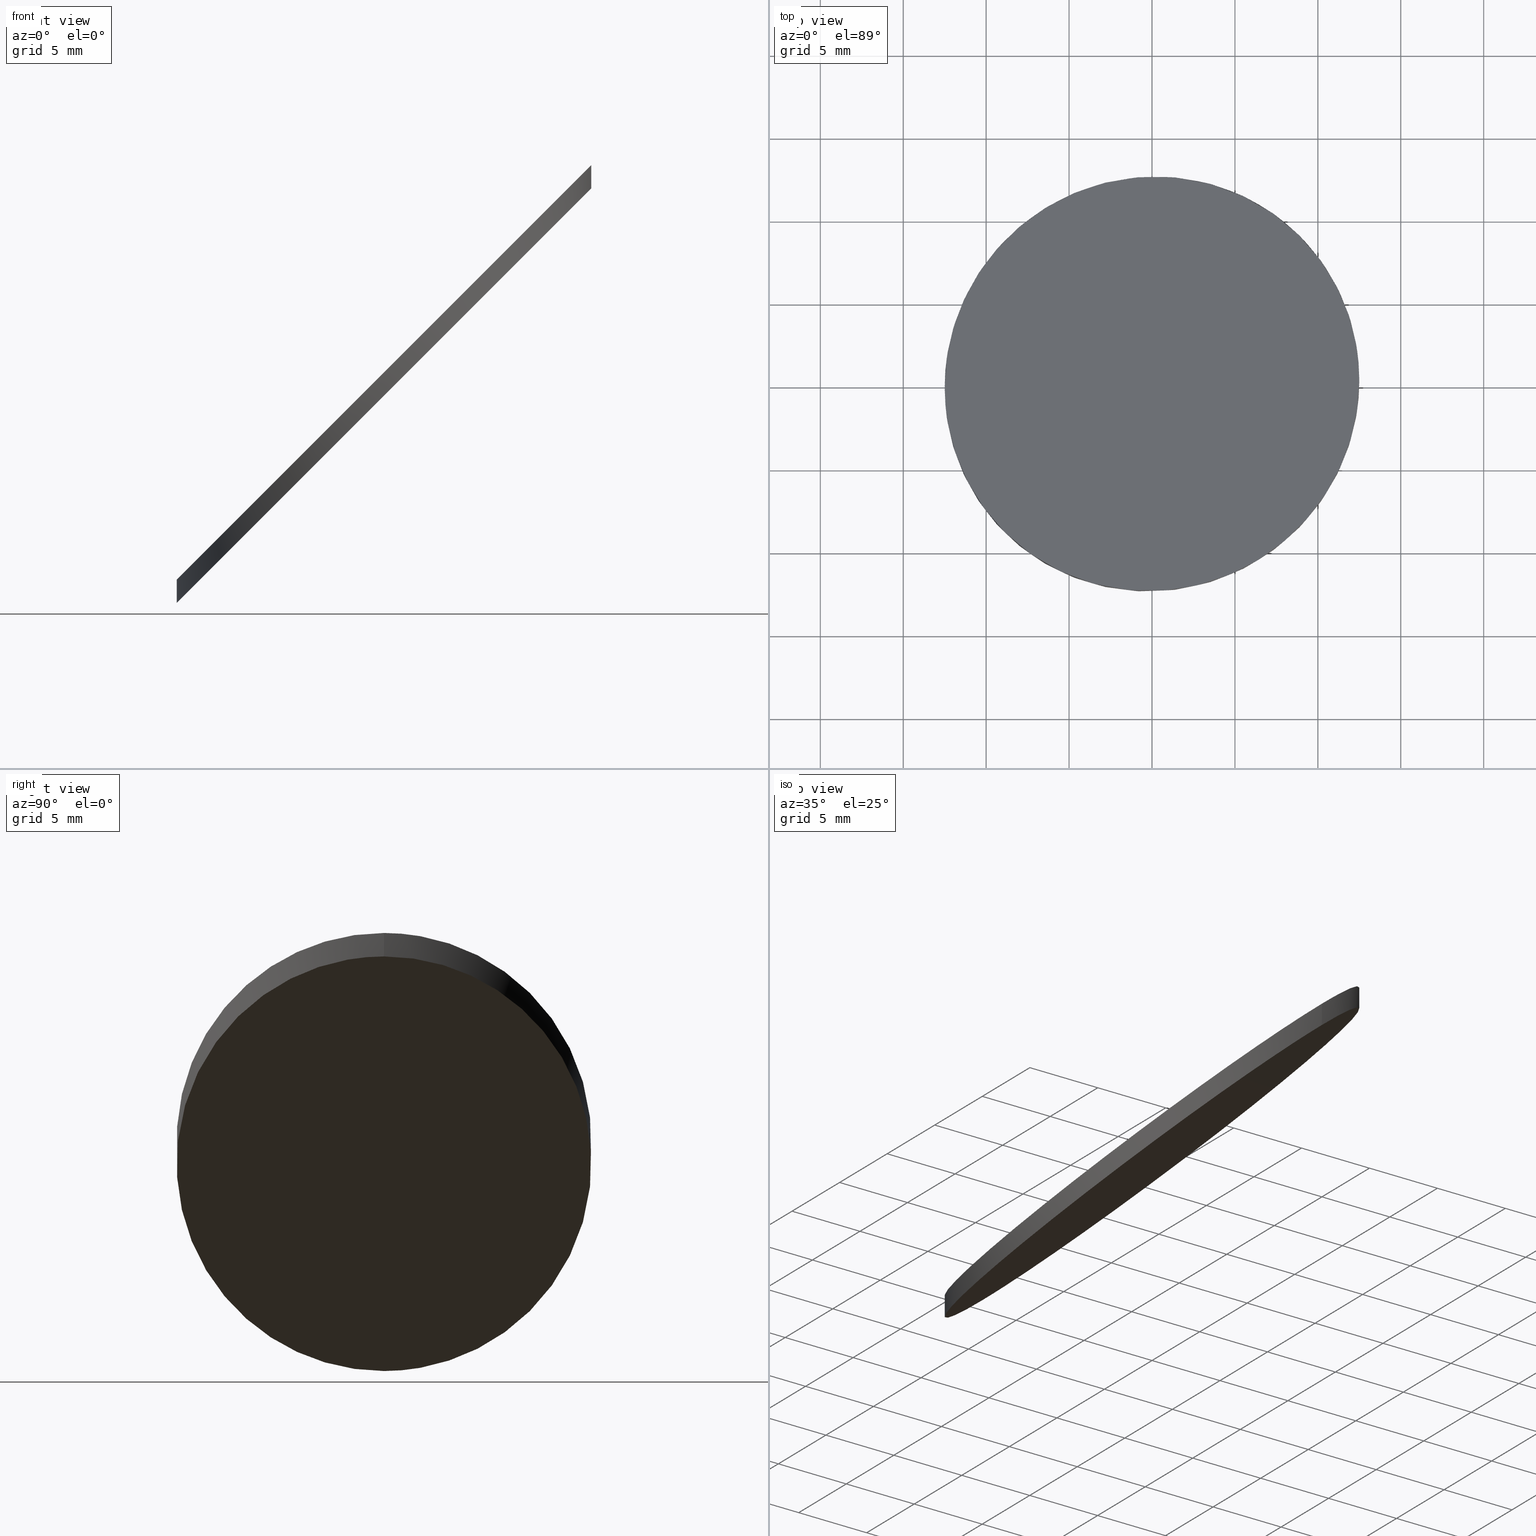
[diagram: canonical four-view strip — front | top / right | iso, engineering-drawing reading convention]
A machine part, canonical four-view strip (front | top / right | iso — engineering-drawing reading convention). The complete STEP part file that produces these views, byte-faithful:
ISO-10303-21;
HEADER;
FILE_DESCRIPTION (( 'STEP AP203' ),
    '1' );
FILE_NAME ('347501.STEP',
    '2021-02-07T03:24:04',
    ( '' ),
    ( '' ),
    'SwSTEP 2.0',
    'SolidWorks 2019',
    '' );
FILE_SCHEMA (( 'CONFIG_CONTROL_DESIGN' ));
ENDSEC;

DATA;
#1 = CARTESIAN_POINT ( 'NONE',  ( -12.50000000000000000, 0.000000000000000000, 6.948063035056913250 ) ) ;
#2 = CALENDAR_DATE ( 2021, 7, 2 ) ;
#3 = DATE_AND_TIME ( #169, #29 ) ;
#4 = CARTESIAN_POINT ( 'NONE',  ( -12.50000000000000000, 0.000000000000000000, 5.533849472683822768 ) ) ;
#5 = EDGE_LOOP ( 'NONE', ( #91, #171, #103, #152 ) ) ;
#6 = EDGE_CURVE ( 'NONE', #76, #170, #34, .T. ) ;
#7 = CARTESIAN_POINT ( 'NONE',  ( 12.50000000000000000, 1.530808498934191127E-15, 61.00000000000001421 ) ) ;
#8 = APPROVAL_PERSON_ORGANIZATION ( #163, #64, #97 ) ;
#9 = DIRECTION ( 'NONE',  ( 1.000000000000000000, 0.000000000000000000, 0.000000000000000000 ) ) ;
#10 = CARTESIAN_POINT ( 'NONE',  ( 0.000000000000000000, 0.000000000000000000, 61.00000000000001421 ) ) ;
#11 = APPLICATION_PROTOCOL_DEFINITION ( 'international standard', 'config_control_design', 1994, #144 ) ;
#12 = AXIS2_PLACEMENT_3D ( 'NONE', #10, #120, #93 ) ;
#13 =( NAMED_UNIT ( * ) PLANE_ANGLE_UNIT ( ) SI_UNIT ( $, .RADIAN. ) );
#14 = PERSON_AND_ORGANIZATION ( #55, #99 ) ;
#15 = EDGE_CURVE ( 'NONE', #170, #76, #155, .T. ) ;
#16 = PERSON_AND_ORGANIZATION_ROLE ( 'creator' ) ;
#17 = CC_DESIGN_DATE_AND_TIME_ASSIGNMENT ( #153, #88, ( #167 ) ) ;
#18 = APPROVAL_PERSON_ORGANIZATION ( #122, #40, #136 ) ;
#19 = CLOSED_SHELL ( 'NONE', ( #115, #154, #62, #156 ) ) ;
#20 = PRODUCT_DEFINITION_FORMATION_WITH_SPECIFIED_SOURCE ( '�κ�', '', #32, .NOT_KNOWN. ) ;
#21 = CARTESIAN_POINT ( 'NONE',  ( 12.50000000000000000, 1.530808498934191127E-15, 31.94806303505680489 ) ) ;
#22 = CARTESIAN_POINT ( 'NONE',  ( 12.50000000000000000, -25.00000000000000000, 30.53384947268371263 ) ) ;
#23 = DIRECTION ( 'NONE',  ( 0.7071067811865490160, 0.000000000000000000, 0.7071067811865460184 ) ) ;
#24 = CARTESIAN_POINT ( 'NONE',  ( -12.50000000000000000, 0.000000000000000000, 6.948063035056913250 ) ) ;
#25 = LINE ( 'NONE', #7, #38 ) ;
#26 = DIRECTION ( 'NONE',  ( -0.7071067811865489050, 0.000000000000000000, -0.7071067811865461294 ) ) ;
#27 = FACE_OUTER_BOUND ( 'NONE', #5, .T. ) ;
#28 = DIRECTION ( 'NONE',  ( -0.000000000000000000, -0.000000000000000000, -1.000000000000000000 ) ) ;
#29 = LOCAL_TIME ( 11, 24, 4.000000000000000000, #166 ) ;
#30 = PERSON_AND_ORGANIZATION_ROLE ( 'creator' ) ;
#31 = VERTEX_POINT ( 'NONE', #24 ) ;
#32 = PRODUCT ( '347501', '347501', '', ( #106 ) ) ;
#33 = CARTESIAN_POINT ( 'NONE',  ( -12.50000000000000533, -25.00000000000000000, 6.948063035056907921 ) ) ;
#34 =( BOUNDED_CURVE ( )  B_SPLINE_CURVE ( 3, ( #77, #104, #22, #102 ),
 .UNSPECIFIED., .F., .T. ) 
 B_SPLINE_CURVE_WITH_KNOTS ( ( 4, 4 ),
 ( 0.000000000000000000, 3.141592653589793116 ),
 .UNSPECIFIED. ) 
 CURVE ( )  GEOMETRIC_REPRESENTATION_ITEM ( )  RATIONAL_B_SPLINE_CURVE ( ( 1.000000000000000000, 0.3333333333333333703, 0.3333333333333333703, 1.000000000000000000 ) ) 
 REPRESENTATION_ITEM ( '' )  );
#35 = CARTESIAN_POINT ( 'NONE',  ( -12.50000000000000533, 25.00000000000000000, 5.533849472683815662 ) ) ;
#36 = APPLICATION_PROTOCOL_DEFINITION ( 'international standard', 'config_control_design', 1994, #175 ) ;
#37 = DIRECTION ( 'NONE',  ( -1.000000000000000000, 0.000000000000000000, 0.000000000000000000 ) ) ;
#38 = VECTOR ( 'NONE', #69, 1000.000000000000000 ) ;
#39 = UNCERTAINTY_MEASURE_WITH_UNIT (LENGTH_MEASURE( 1.000000000000000082E-05 ), #121, 'distance_accuracy_value', 'NONE');
#40 = APPROVAL ( #45, 'δָ��' ) ;
#41 = APPROVAL_STATUS ( 'not_yet_approved' ) ;
#42 = CARTESIAN_POINT ( 'NONE',  ( -12.50000000000000533, 25.00000000000000000, 6.948063035056907921 ) ) ;
#43 = LOCAL_TIME ( 11, 24, 4.000000000000000000, #65 ) ;
#44 = APPROVAL_DATE_TIME ( #139, #68 ) ;
#45 = APPROVAL_STATUS ( 'not_yet_approved' ) ;
#46 = CALENDAR_DATE ( 2021, 7, 2 ) ;
#47 = ORIENTED_EDGE ( 'NONE', *, *, #78, .T. ) ;
#48 = CARTESIAN_POINT ( 'NONE',  ( 12.50000000000000000, 1.530808498934191127E-15, 30.53384947268370908 ) ) ;
#49 = EDGE_LOOP ( 'NONE', ( #47, #72, #157, #61 ) ) ;
#50 = EDGE_CURVE ( 'NONE', #105, #31, #74, .T. ) ;
#51 = EDGE_LOOP ( 'NONE', ( #172, #111 ) ) ;
#52 =( GEOMETRIC_REPRESENTATION_CONTEXT ( 3 ) GLOBAL_UNCERTAINTY_ASSIGNED_CONTEXT ( ( #39 ) ) GLOBAL_UNIT_ASSIGNED_CONTEXT ( ( #121, #13, #133 ) ) REPRESENTATION_CONTEXT ( 'NONE', 'WORKASPACE' ) );
#53 = ORIENTED_EDGE ( 'NONE', *, *, #50, .F. ) ;
#54 = PLANE ( 'NONE',  #112 ) ;
#55 = PERSON ( 'δָ��', 'δָ��', 'δָ��', ('δָ��'), ('δָ��'), ('δָ��') ) ;
#56 = CARTESIAN_POINT ( 'NONE',  ( 12.50000000000000000, 1.530808498934191127E-15, 31.94806303505680489 ) ) ;
#57 = CC_DESIGN_PERSON_AND_ORGANIZATION_ASSIGNMENT ( #14, #16, ( #20 ) ) ;
#58 = APPROVAL_DATE_TIME ( #3, #40 ) ;
#59 = VECTOR ( 'NONE', #150, 1000.000000000000000 ) ;
#60 = COORDINATED_UNIVERSAL_TIME_OFFSET ( 8, 0, .AHEAD. ) ;
#61 = ORIENTED_EDGE ( 'NONE', *, *, #160, .F. ) ;
#62 = ADVANCED_FACE ( 'NONE', ( #128 ), #145, .F. ) ;
#63 = CARTESIAN_POINT ( 'NONE',  ( 12.50000000000000000, 1.530808498934191127E-15, 30.53384947268370908 ) ) ;
#64 = APPROVAL ( #41, 'δָ��' ) ;
#65 = COORDINATED_UNIVERSAL_TIME_OFFSET ( 8, 0, .AHEAD. ) ;
#66 = FACE_OUTER_BOUND ( 'NONE', #143, .T. ) ;
#67 = DIRECTION ( 'NONE',  ( 0.7071067811865461294, 0.000000000000000000, -0.7071067811865489050 ) ) ;
#68 = APPROVAL ( #151, 'δָ��' ) ;
#69 = DIRECTION ( 'NONE',  ( -0.000000000000000000, -0.000000000000000000, -1.000000000000000000 ) ) ;
#70 = DATE_AND_TIME ( #71, #129 ) ;
#71 = CALENDAR_DATE ( 2021, 7, 2 ) ;
#72 = ORIENTED_EDGE ( 'NONE', *, *, #92, .T. ) ;
#73 = SHAPE_DEFINITION_REPRESENTATION ( #109, #149 ) ;
#74 =( BOUNDED_CURVE ( )  B_SPLINE_CURVE ( 3, ( #21, #114, #33, #90 ),
 .UNSPECIFIED., .F., .T. ) 
 B_SPLINE_CURVE_WITH_KNOTS ( ( 4, 4 ),
 ( 3.141592653589793116, 6.283185307179586232 ),
 .UNSPECIFIED. ) 
 CURVE ( )  GEOMETRIC_REPRESENTATION_ITEM ( )  RATIONAL_B_SPLINE_CURVE ( ( 1.000000000000000000, 0.3333333333333333703, 0.3333333333333333703, 1.000000000000000000 ) ) 
 REPRESENTATION_ITEM ( '' )  );
#75 = COORDINATED_UNIVERSAL_TIME_OFFSET ( 8, 0, .AHEAD. ) ;
#76 = VERTEX_POINT ( 'NONE', #79 ) ;
#77 = CARTESIAN_POINT ( 'NONE',  ( -12.50000000000000000, 0.000000000000000000, 5.533849472683822768 ) ) ;
#78 = EDGE_CURVE ( 'NONE', #31, #105, #98, .T. ) ;
#79 = CARTESIAN_POINT ( 'NONE',  ( -12.50000000000000000, 0.000000000000000000, 5.533849472683822768 ) ) ;
#80 = CC_DESIGN_PERSON_AND_ORGANIZATION_ASSIGNMENT ( #137, #30, ( #167 ) ) ;
#81 = CARTESIAN_POINT ( 'NONE',  ( 0.000000000000000000, 0.000000000000000000, 61.00000000000001421 ) ) ;
#82 = CYLINDRICAL_SURFACE ( 'NONE', #134, 12.50000000000000000 ) ;
#83 = LINE ( 'NONE', #135, #59 ) ;
#84 = PERSON_AND_ORGANIZATION_ROLE ( 'design_supplier' ) ;
#85 = APPROVAL_DATE_TIME ( #174, #64 ) ;
#86 = PERSON_AND_ORGANIZATION_ROLE ( 'classification_officer' ) ;
#87 = DATE_TIME_ROLE ( 'classification_date' ) ;
#88 = DATE_TIME_ROLE ( 'creation_date' ) ;
#89 = CC_DESIGN_PERSON_AND_ORGANIZATION_ASSIGNMENT ( #148, #131, ( #32 ) ) ;
#90 = CARTESIAN_POINT ( 'NONE',  ( -12.50000000000000000, 0.000000000000000000, 6.948063035056913250 ) ) ;
#91 = ORIENTED_EDGE ( 'NONE', *, *, #92, .F. ) ;
#92 = EDGE_CURVE ( 'NONE', #105, #170, #25, .T. ) ;
#93 = DIRECTION ( 'NONE',  ( -1.000000000000000000, 0.000000000000000000, 0.000000000000000000 ) ) ;
#94 = CARTESIAN_POINT ( 'NONE',  ( 12.50000000000000000, 1.530808498934191127E-15, 31.94806303505680489 ) ) ;
#95 = DIRECTION ( 'NONE',  ( 0.000000000000000000, 0.000000000000000000, 1.000000000000000000 ) ) ;
#96 = CC_DESIGN_PERSON_AND_ORGANIZATION_ASSIGNMENT ( #168, #84, ( #20 ) ) ;
#97 = APPROVAL_ROLE ( '' ) ;
#98 =( BOUNDED_CURVE ( )  B_SPLINE_CURVE ( 3, ( #1, #42, #146, #94 ),
 .UNSPECIFIED., .F., .T. ) 
 B_SPLINE_CURVE_WITH_KNOTS ( ( 4, 4 ),
 ( 0.000000000000000000, 3.141592653589793116 ),
 .UNSPECIFIED. ) 
 CURVE ( )  GEOMETRIC_REPRESENTATION_ITEM ( )  RATIONAL_B_SPLINE_CURVE ( ( 1.000000000000000000, 0.3333333333333333703, 0.3333333333333333703, 1.000000000000000000 ) ) 
 REPRESENTATION_ITEM ( '' )  );
#99 = ORGANIZATION ( 'δָ��', 'δָ��', '' ) ;
#100 = CC_DESIGN_DATE_AND_TIME_ASSIGNMENT ( #70, #87, ( #108 ) ) ;
#101 = APPROVAL_ROLE ( '' ) ;
#102 = CARTESIAN_POINT ( 'NONE',  ( 12.50000000000000000, 1.530808498934191127E-15, 30.53384947268370908 ) ) ;
#103 = ORIENTED_EDGE ( 'NONE', *, *, #160, .T. ) ;
#104 = CARTESIAN_POINT ( 'NONE',  ( -12.50000000000000533, -25.00000000000000000, 5.533849472683815662 ) ) ;
#105 = VERTEX_POINT ( 'NONE', #56 ) ;
#106 = MECHANICAL_CONTEXT ( 'NONE', #175, 'mechanical' ) ;
#107 = CARTESIAN_POINT ( 'NONE',  ( -40.08544724261557235, -30.50000000000000711, -20.63738420755854364 ) ) ;
#108 = SECURITY_CLASSIFICATION ( '', '', #123 ) ;
#109 = PRODUCT_DEFINITION_SHAPE ( 'NONE', 'NONE',  #167 ) ;
#110 = PERSON_AND_ORGANIZATION ( #55, #99 ) ;
#111 = ORIENTED_EDGE ( 'NONE', *, *, #15, .F. ) ;
#112 = AXIS2_PLACEMENT_3D ( 'NONE', #107, #67, #26 ) ;
#113 = PERSON_AND_ORGANIZATION ( #55, #99 ) ;
#114 = CARTESIAN_POINT ( 'NONE',  ( 12.50000000000001066, -25.00000000000000000, 31.94806303505681910 ) ) ;
#115 = ADVANCED_FACE ( 'NONE', ( #147 ), #164, .T. ) ;
#116 = AXIS2_PLACEMENT_3D ( 'NONE', #117, #125, #23 ) ;
#117 = CARTESIAN_POINT ( 'NONE',  ( -39.37834046142902622, -30.50000000000000711, -21.34449098874508977 ) ) ;
#118 = APPROVAL_PERSON_ORGANIZATION ( #113, #68, #101 ) ;
#119 = CALENDAR_DATE ( 2021, 7, 2 ) ;
#120 = DIRECTION ( 'NONE',  ( -0.000000000000000000, -0.000000000000000000, -1.000000000000000000 ) ) ;
#121 =( LENGTH_UNIT ( ) NAMED_UNIT ( * ) SI_UNIT ( .MILLI., .METRE. ) );
#122 = PERSON_AND_ORGANIZATION ( #55, #99 ) ;
#123 = SECURITY_CLASSIFICATION_LEVEL ( 'unclassified' ) ;
#124 = COORDINATED_UNIVERSAL_TIME_OFFSET ( 8, 0, .AHEAD. ) ;
#125 = DIRECTION ( 'NONE',  ( -0.7071067811865460184, 0.000000000000000000, 0.7071067811865490160 ) ) ;
#126 = CC_DESIGN_PERSON_AND_ORGANIZATION_ASSIGNMENT ( #110, #86, ( #108 ) ) ;
#127 = CC_DESIGN_APPROVAL ( #40, ( #108 ) ) ;
#128 = FACE_OUTER_BOUND ( 'NONE', #51, .T. ) ;
#129 = LOCAL_TIME ( 11, 24, 4.000000000000000000, #75 ) ;
#130 = CC_DESIGN_APPROVAL ( #64, ( #167 ) ) ;
#131 = PERSON_AND_ORGANIZATION_ROLE ( 'design_owner' ) ;
#132 = DESIGN_CONTEXT ( 'detailed design', #144, 'design' ) ;
#133 =( NAMED_UNIT ( * ) SI_UNIT ( $, .STERADIAN. ) SOLID_ANGLE_UNIT ( ) );
#134 = AXIS2_PLACEMENT_3D ( 'NONE', #81, #28, #37 ) ;
#135 = CARTESIAN_POINT ( 'NONE',  ( -12.50000000000000000, 0.000000000000000000, 61.00000000000001421 ) ) ;
#136 = APPROVAL_ROLE ( '' ) ;
#137 = PERSON_AND_ORGANIZATION ( #55, #99 ) ;
#138 = ORIENTED_EDGE ( 'NONE', *, *, #78, .F. ) ;
#139 = DATE_AND_TIME ( #2, #141 ) ;
#140 = CC_DESIGN_SECURITY_CLASSIFICATION ( #108, ( #20 ) ) ;
#141 = LOCAL_TIME ( 11, 24, 4.000000000000000000, #124 ) ;
#142 = CARTESIAN_POINT ( 'NONE',  ( 12.50000000000001066, 25.00000000000000000, 30.53384947268371974 ) ) ;
#143 = EDGE_LOOP ( 'NONE', ( #138, #53 ) ) ;
#144 = APPLICATION_CONTEXT ( 'configuration controlled 3d designs of mechanical parts and assemblies' ) ;
#145 = PLANE ( 'NONE',  #116 ) ;
#146 = CARTESIAN_POINT ( 'NONE',  ( 12.50000000000000000, 25.00000000000000000, 31.94806303505681910 ) ) ;
#147 = FACE_OUTER_BOUND ( 'NONE', #49, .T. ) ;
#148 = PERSON_AND_ORGANIZATION ( #55, #99 ) ;
#149 = ADVANCED_BREP_SHAPE_REPRESENTATION ( '347501', ( #159, #173 ), #52 ) ;
#150 = DIRECTION ( 'NONE',  ( -0.000000000000000000, -0.000000000000000000, -1.000000000000000000 ) ) ;
#151 = APPROVAL_STATUS ( 'not_yet_approved' ) ;
#152 = ORIENTED_EDGE ( 'NONE', *, *, #6, .T. ) ;
#153 = DATE_AND_TIME ( #46, #158 ) ;
#154 = ADVANCED_FACE ( 'NONE', ( #27 ), #82, .T. ) ;
#155 =( BOUNDED_CURVE ( )  B_SPLINE_CURVE ( 3, ( #48, #142, #35, #4 ),
 .UNSPECIFIED., .F., .T. ) 
 B_SPLINE_CURVE_WITH_KNOTS ( ( 4, 4 ),
 ( 3.141592653589793116, 6.283185307179586232 ),
 .UNSPECIFIED. ) 
 CURVE ( )  GEOMETRIC_REPRESENTATION_ITEM ( )  RATIONAL_B_SPLINE_CURVE ( ( 1.000000000000000000, 0.3333333333333333703, 0.3333333333333333703, 1.000000000000000000 ) ) 
 REPRESENTATION_ITEM ( '' )  );
#156 = ADVANCED_FACE ( 'NONE', ( #66 ), #54, .F. ) ;
#157 = ORIENTED_EDGE ( 'NONE', *, *, #15, .T. ) ;
#158 = LOCAL_TIME ( 11, 24, 4.000000000000000000, #60 ) ;
#159 = MANIFOLD_SOLID_BREP ( '�г�-����1', #19 ) ;
#160 = EDGE_CURVE ( 'NONE', #31, #76, #83, .T. ) ;
#161 = CARTESIAN_POINT ( 'NONE',  ( 0.000000000000000000, 0.000000000000000000, 0.000000000000000000 ) ) ;
#162 = PRODUCT_RELATED_PRODUCT_CATEGORY ( 'detail', '', ( #32 ) ) ;
#163 = PERSON_AND_ORGANIZATION ( #55, #99 ) ;
#164 = CYLINDRICAL_SURFACE ( 'NONE', #12, 12.50000000000000000 ) ;
#165 = CC_DESIGN_APPROVAL ( #68, ( #20 ) ) ;
#166 = COORDINATED_UNIVERSAL_TIME_OFFSET ( 8, 0, .AHEAD. ) ;
#167 = PRODUCT_DEFINITION ( 'δ֪', '', #20, #132 ) ;
#168 = PERSON_AND_ORGANIZATION ( #55, #99 ) ;
#169 = CALENDAR_DATE ( 2021, 7, 2 ) ;
#170 = VERTEX_POINT ( 'NONE', #63 ) ;
#171 = ORIENTED_EDGE ( 'NONE', *, *, #50, .T. ) ;
#172 = ORIENTED_EDGE ( 'NONE', *, *, #6, .F. ) ;
#173 = AXIS2_PLACEMENT_3D ( 'NONE', #161, #95, #9 ) ;
#174 = DATE_AND_TIME ( #119, #43 ) ;
#175 = APPLICATION_CONTEXT ( 'configuration controlled 3d designs of mechanical parts and assemblies' ) ;
ENDSEC;
END-ISO-10303-21;
